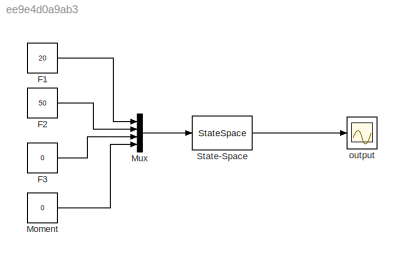
MODEL slx_ee9e4d0a9ab3
KIND model
CONFIG AbsTol = auto
CONFIG FixedStep = auto
CONFIG MaxStep = auto
CONFIG MinStep = auto
CONFIG RelTol = 1e-3
CONFIG SampleTimeConstraint = Unconstrained
CONFIG Solver = VariableStepAuto
CONFIG SolverMode = Auto
CONFIG SolverName = VariableStepAuto
CONFIG StartTime = 0.0
CONFIG StopTime = 10.0
BLOCK [Constant] F1
  Value = 20
BLOCK [Constant] F2
  Value = 50
BLOCK [Constant] F3
  Value = 0
BLOCK [Constant] Moment 
  Value = 0
BLOCK [Mux] Mux
  DisplayOption = bar
  Ports = [4, 1]
BLOCK [StateSpace] State-Space
  A = A
  B = B
  C = C
  D = D
  Ports = [1, 1]
  X0 = [0 0 0 0 0 0 0 0]
BLOCK [Scope] output
  Ports = [1]
  ScopeSpecificationString = Simulink.scopes.TimeScopeBlockCfg('CurrentConfiguration', extmgr.ConfigurationSet(extmgr.Configuration('Core','General UI',true),extmgr.Configuration('Core','Source UI',true),extmgr.Configuration('Sources','WiredSimulink',true),extmgr.Configuration('Visuals','Time Domain',true,'SerializedDisplays',{struct('MinYLimReal','-9125255.35932','MaxYLimReal','82127298.18384','YLabelReal','','MinYLimMag',' ...<+1431ch>
LINE F1:1 -> Mux:1
LINE F2:1 -> Mux:2
LINE F3:1 -> Mux:3
LINE Moment :1 -> Mux:4
LINE Mux:1 -> State-Space:1
LINE State-Space:1 -> output:1
